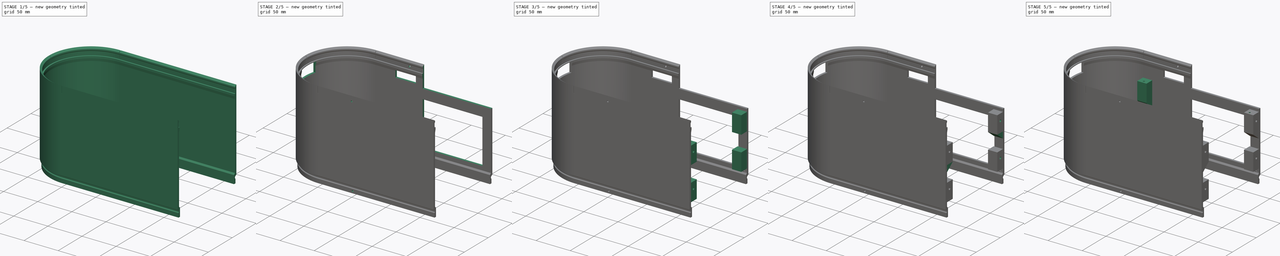
[diagram: build sequence overview — one tinted view per stage of 5, left to right]
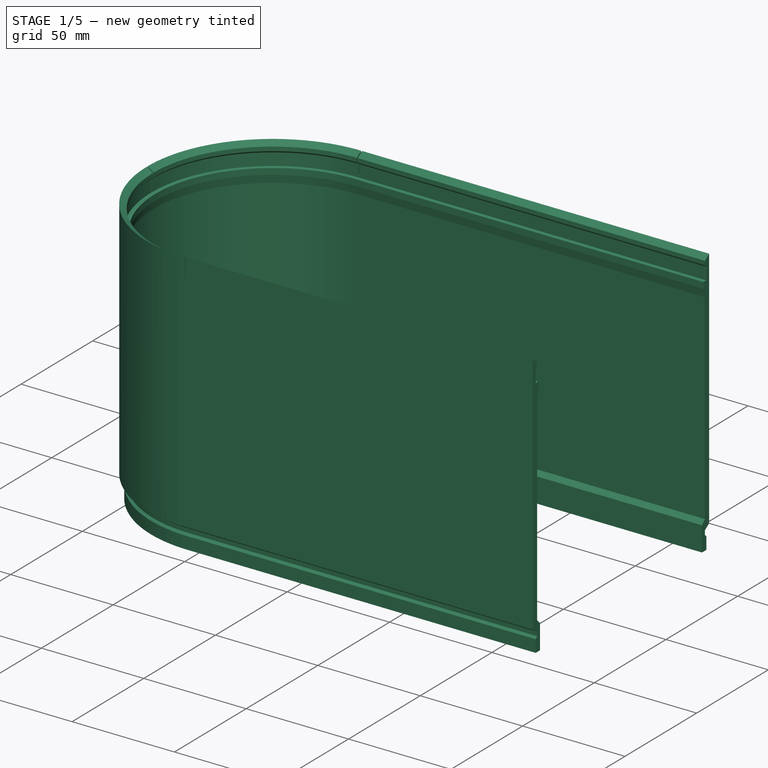
[diagram: stage 1 of 5 — iso view after this stage's code; geometry added in this stage tinted green]
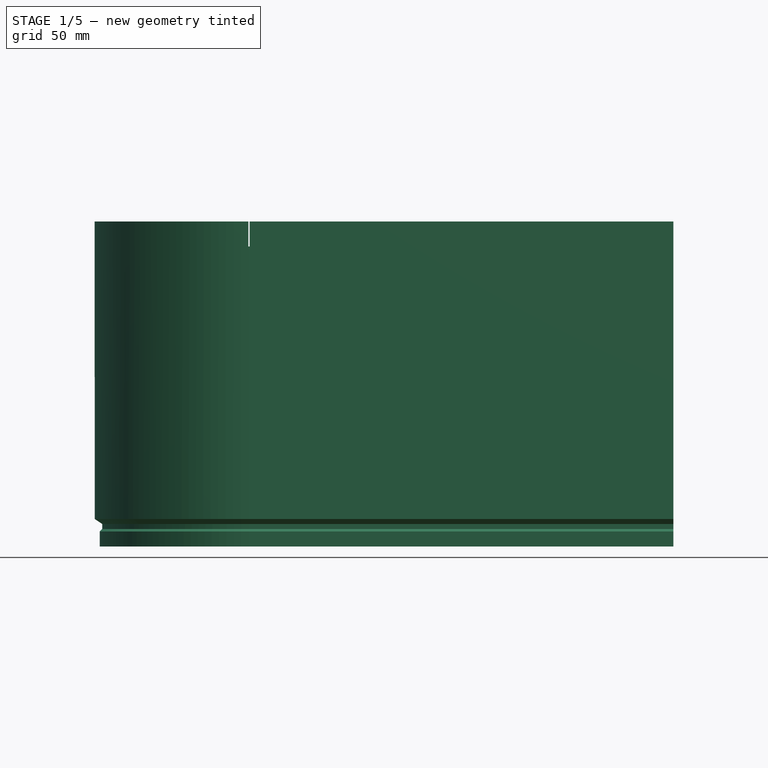
[diagram: stage 1 of 5 — front view after this stage's code; geometry added in this stage tinted green]
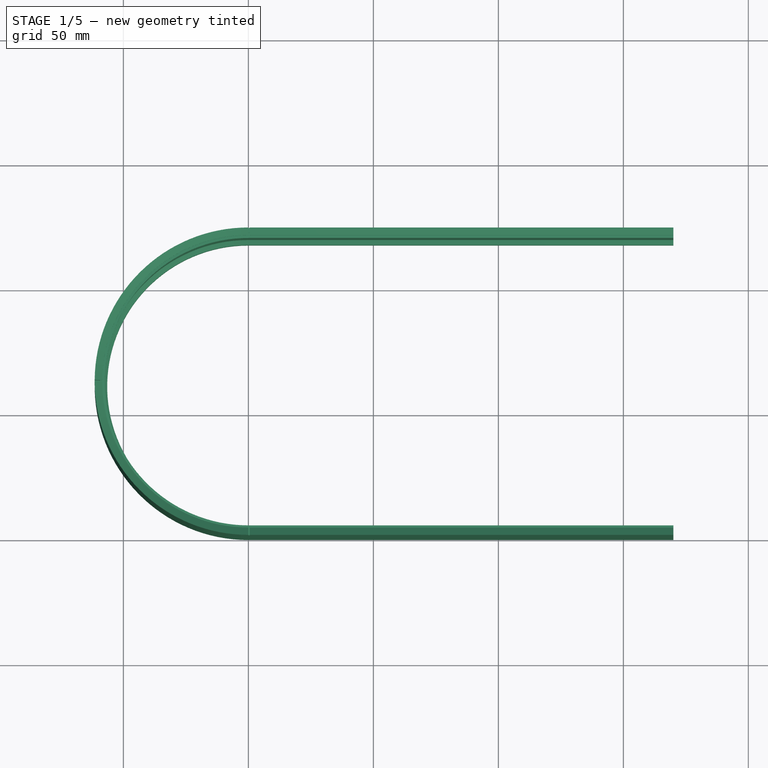
[diagram: stage 1 of 5 — top view after this stage's code; geometry added in this stage tinted green]
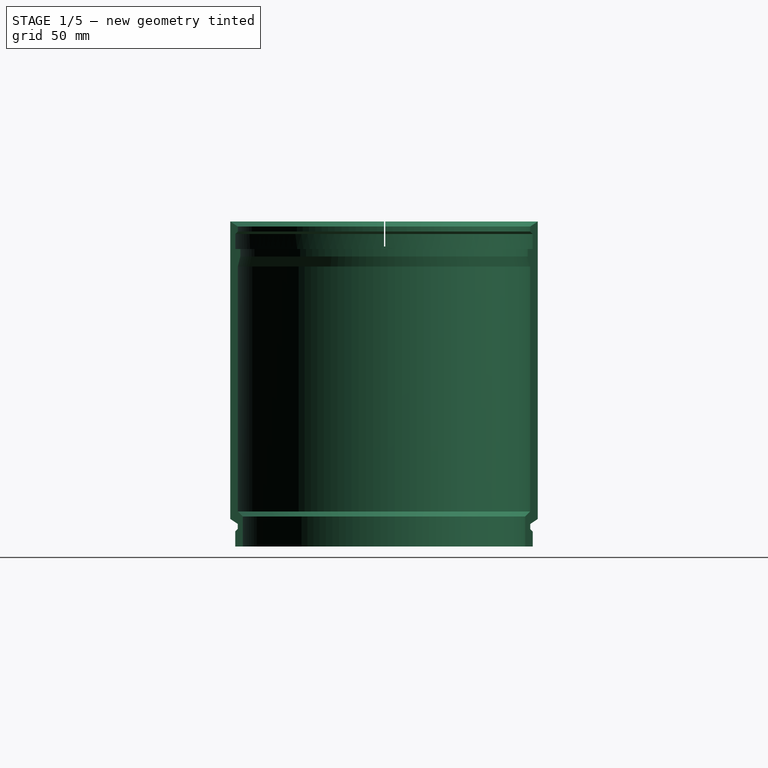
[diagram: stage 1 of 5 — right view after this stage's code; geometry added in this stage tinted green]
FCSTD DOCUMENT  (FreeCAD 1.0R39109 (Git))
Label: MIddle Layer - Pi Side - Wall
License: All rights reserved
LicenseURL: http://en.wikipedia.org/wiki/All_rights_reserved
objects: Sketcher::SketchObject×16, PartDesign::Pocket×12, PartDesign::Plane×6, PartDesign::Mirrored×6, PartDesign::Pad×4, App::Link×1, PartDesign::ShapeBinder×1, PartDesign::Line×1, PartDesign::Revolution×1, PartDesign::Body×1, App::Part×1
note: 104 computed .brp shape members not serialized (recipe doc carries the construction recipe); baked Part::Feature solids carry a one-line shape summary decoded from their .brp
EXTERNAL_REF file=../Master Document.FCStd obj=Spreadsheet

FEATURE [App::Link] Link  label="Monitor Chassis Parameters"
  LinkPlacement = pos=(0,-59,0) rot=(0,0,1;0rad)
  LinkedObject = -> <external ../Master Document.FCStd>#Spreadsheet
  Placement = pos=(0,-59,0) rot=(0,0,1;0rad)
FEATURE [Sketcher::SketchObject] Sketch001  label="Side Wall Sketch"
  ArcFitTolerance = 0
  FullyConstrained = true
  MakeInternals = false
  MapMode = 5
  Placement = pos=(0,0,0) rot=(0.57735,-0.57735,-0.57735;2.0944rad)
  expr: Constraints[15] = 2
  expr: Constraints[16] = <<Monitor Chassis Parameters>>.GSCamWallClickIndent
  expr: Constraints[21] = <<Monitor Chassis Parameters>>.GSCamWallClickLength
  expr: Constraints[36] = 3
  expr: Constraints[38] = 2
  expr: Constraints[39] = <<Monitor Chassis Parameters>>.GSCamWallClickLength
  expr: Constraints[40] = <<Monitor Chassis Parameters>>.GsMonitorWall2OverallHeight
  expr: Constraints[42] = 1
  expr: Constraints[43] = 1
  expr: Constraints[44] = 2
  expr: Constraints[45] = 2
  expr: Constraints[46] = 2
  expr: Constraints[47] = 3
  expr: Constraints[48] = <<Monitor Chassis Parameters>>.GSThinWallThickness
  sketch-geometry (18):
    g0: LineSegment StartX=-3 StartY=126 StartZ=0 EndX=-2 EndY=125 EndZ=0
    g1: LineSegment StartX=-2 StartY=125 StartZ=0 EndX=-2 EndY=119 EndZ=0
    g2: LineSegment StartX=-2 StartY=119 StartZ=0 EndX=-4 EndY=119 EndZ=0
    g3: GeomPoint [constr] X=-3 Y=112 Z=0
    g4: GeomPoint [constr] X=-4 Y=116 Z=0
    g5: LineSegment StartX=-4 StartY=119 StartZ=0 EndX=-4 EndY=116 EndZ=0
    g6: LineSegment StartX=-4 StartY=116 StartZ=0 EndX=-3 EndY=112 EndZ=0
    g7: LineSegment StartX=0 StartY=130 StartZ=0 EndX=-3 EndY=128 EndZ=0
    g8: LineSegment StartX=-3 StartY=126 StartZ=0 EndX=-3 EndY=128 EndZ=0
    g9: LineSegment StartX=-3 StartY=112 StartZ=0 EndX=-3 EndY=14 EndZ=0
    g10: LineSegment StartX=-5 StartY=12 StartZ=0 EndX=-5 EndY=0 EndZ=0
    g11: LineSegment StartX=-2 StartY=0 StartZ=0 EndX=-2 EndY=6 EndZ=0
    g12: LineSegment StartX=-2 StartY=6 StartZ=0 EndX=-3 EndY=7 EndZ=0
    g13: LineSegment StartX=-3 StartY=7 StartZ=0 EndX=-3 EndY=9 EndZ=0
    g14: LineSegment StartX=-3 StartY=9 StartZ=0 EndX=0 EndY=11 EndZ=0
    g15: LineSegment StartX=-5 StartY=12 StartZ=0 EndX=-3 EndY=14 EndZ=0
    g16: LineSegment StartX=-5 StartY=0 StartZ=0 EndX=-2 EndY=0 EndZ=0
    g17: LineSegment StartX=0 StartY=130 StartZ=0 EndX=0 EndY=11 EndZ=0
  constraints (50):
    c: Coincident(g0,g1)
    c: Coincident(g1,g2)
    c: Vertical(g0,g1)
    c: Coincident(g5,g2)
    c: Coincident(g5,g4)
    c: Coincident(g9,g3)
    c: Coincident(g6,g5)
    c: Coincident(g6,g9)
    c: DistanceY(g9,g5) = 4
    c: DistanceX(g5,g9) = 1
    c: Vertical(g5)
    c: Coincident(g8,g0)
    c: Coincident(g8,g7)
    c: DistanceY(g5,g2) = 3
    c: Horizontal(g2,g1)
    c: DistanceX(g2,g1) = 2
    c: DistanceX(g0,g0) = 1
    c: DistanceY(g0,g0) = 1
    c: Vertical(g8)
    c: DistanceY(g7,g7) = 2
    c: DistanceY(g0,g7) = 2
    c: DistanceY(g1,g0) = 6
    c: Vertical(g9)
    c: Coincident(g12,g11)
    c: Coincident(g13,g12)
    c: Vertical(g13)
    c: Coincident(g14,g13)
    c: Coincident(g15,g10)
    c: Coincident(g16,g10)
    c: Coincident(g16,g11)
    c: Horizontal(g16)
    c: Vertical(g11)
    c: Vertical(g10)
    c: Coincident(g17,g7)
    c: PointOnObject(g17,g-2)
    c: Vertical(g17)
    c: DistanceX(g10,g11) = 3
    c: Coincident(g17,g14)
    c: DistanceX(g11,g-1) = 2
    c: DistanceY(g11,g11) = 6
    c: DistanceY(g11,g7) = 130
    c: Horizontal(g11,g-1)
    c: DistanceY(g11,g12) = 1
    c: DistanceX(g12,g11) = 1
    c: DistanceY(g12,g13) = 2
    c: DistanceY(g13,g14) = 2
    c: DistanceY(g10,g15) = 2
    c: DistanceY(g13,g10) = 3
    c: DistanceX(g9,g-1) = 3
    c: Coincident(g9,g15)
FEATURE [PartDesign::Pad] Pad001  label="Side Wall Pad"
  Direction = (-1,1e-16,-1e-16)
  Length = 170
  Length2 = 10
  Placement = pos=(0,0,0) rot=(0.57735,-0.57735,-0.57735;2.0944rad)
  Profile = -> Sketch001
  ReferenceAxis = -> Sketch001 [N_Axis]
  Reversed = true
  Suppressed = false
  Type = 0
  expr: Length = <<Monitor Chassis Parameters>>.GSWallHalfLength
FEATURE [PartDesign::ShapeBinder] CopyYZ_Plane
  Placement = pos=(0,0,0) rot=(0.57735,0.57735,0.57735;2.0944rad)
  TraceSupport = false
FEATURE [PartDesign::Line] DatumLine
  AttacherType = Attacher::AttachEngineLine
  AttachmentOffset = pos=(0,0,61.5) rot=(0,1,0;1.5708rad)
  AttachmentSupport = -> [CopyYZ_Plane]
  Length = 20
  MapMode = 16
  Placement = pos=(0,61.5,0) rot=(0,0,1;4.71239rad)
  ResizeMode = 0
  expr: .AttachmentOffset.Base.z = 0.5 * <<Monitor Chassis Parameters>>.GSWallWidth
FEATURE [PartDesign::Revolution] Revolution  label="Sidel Wall Revolution"
  Angle = 180
  Angle2 = 60
  Axis = (0,0,1)
  Base = (0,61.5,0)
  BaseFeature = -> Pad001
  Placement = pos=(0,0,0) rot=(0.57735,-0.57735,-0.57735;2.0944rad)
  Profile = -> Sketch001
  ReferenceAxis = -> DatumLine
  Reversed = true
  Suppressed = false
  Type = 0
FEATURE [PartDesign::Plane] DatumPlane
  AttachmentSupport = -> [Origin]
  Length = 228.976
  ResizeMode = 0
  Width = 181.976
FEATURE [PartDesign::Plane] DatumPlane001  label="Center Plane"
  AttachmentOffset = pos=(0,0,-61.5) rot=(0,0,1;0rad)
  AttachmentSupport = -> [XZ_Plane001]
  Length = 269.385
  MapMode = 5
  Placement = pos=(0,61.5,-1.37e-14) rot=(1,0,0;1.5708rad)
  ResizeMode = 0
  Width = 192.885
  expr: .AttachmentOffset.Base.z = -0.5 * <<Monitor Chassis Parameters>>.GSWallWidth
FEATURE [PartDesign::Mirrored] Mirrored  label="Side Wall Mirror"
  BaseFeature = -> Revolution
  MirrorPlane = -> DatumPlane001
  Originals = -> [Pad001]
  Placement = pos=(0,0,0) rot=(0.57735,-0.57735,-0.57735;2.0944rad)
  Suppressed = false
  TransformMode = 0
FEATURE [Sketcher::SketchObject] Sketch004
  ArcFitTolerance = 1e-06
  AttachmentSupport = -> [XZ_Plane001]
  FullyConstrained = true
  MakeInternals = false
  MapMode = 5
  Placement = pos=(0,0,0) rot=(1,0,0;1.5708rad)
  expr: Constraints[10] = <<Monitor Chassis Parameters>>.GsMonitorWall2OverallHeight
  expr: Constraints[11] = <<Monitor Chassis Parameters>>.GSMonitorWallTensionReliefCutWidth
  sketch-geometry (4):
    g0: LineSegment StartX=0 StartY=130 StartZ=0 EndX=0 EndY=120 EndZ=0
    g1: LineSegment StartX=0 StartY=120 StartZ=0 EndX=0.5 EndY=120 EndZ=0
    g2: LineSegment StartX=0.5 StartY=120 StartZ=0 EndX=0.5 EndY=130 EndZ=0
    g3: LineSegment StartX=0.5 StartY=130 StartZ=0 EndX=0 EndY=130 EndZ=0
  constraints (12):
    c: Coincident(g0,g1)
    c: Coincident(g1,g2)
    c: Coincident(g2,g3)
    c: Coincident(g3,g0)
    c: Vertical(g0)
    c: Vertical(g2)
    c: Horizontal(g1)
    c: Horizontal(g3)
    c: DistanceY(g0,g0) = 10
    c: Vertical(g0,g-1)
    c: DistanceY(g-1,g0) = 130
    c: DistanceX(g0,g1) = 0.5
FEATURE [PartDesign::Pocket] Pocket  label="Tension Relief Side Pocket"
  BaseFeature = -> Mirrored
  Direction = (0,1,-2e-16)
  Length = 5
  Length2 = 5
  Placement = pos=(0,0,0) rot=(0.57735,-0.57735,-0.57735;2.0944rad)
  Profile = -> Sketch004
  ReferenceAxis = -> Sketch004 [N_Axis]
  Suppressed = false
  Type = 1
FEATURE [Sketcher::SketchObject] Sketch005
  ArcFitTolerance = 1e-06
  AttachmentSupport = -> [YZ_Plane001]
  FullyConstrained = true
  MakeInternals = false
  MapMode = 5
  Placement = pos=(0,0,0) rot=(0.57735,0.57735,0.57735;2.0944rad)
  expr: Constraints[10] = <<Monitor Chassis Parameters>>.GSMonitorWallTensionReliefCutWidth
  expr: Constraints[11] = 0.5 * <<Monitor Chassis Parameters>>.GSWallWidth
  expr: Constraints[8] = <<Monitor Chassis Parameters>>.GsMonitorWall2OverallHeight
  sketch-geometry (4):
    g0: LineSegment StartX=61.5 StartY=130 StartZ=0 EndX=61.5 EndY=120 EndZ=0
    g1: LineSegment StartX=61.5 StartY=120 StartZ=0 EndX=62 EndY=120 EndZ=0
    g2: LineSegment StartX=62 StartY=120 StartZ=0 EndX=62 EndY=130 EndZ=0
    g3: LineSegment StartX=62 StartY=130 StartZ=0 EndX=61.5 EndY=130 EndZ=0
  constraints (12):
    c: Coincident(g0,g1)
    c: Coincident(g1,g2)
    c: Coincident(g2,g3)
    c: Coincident(g3,g0)
    c: Vertical(g0)
    c: Vertical(g2)
    c: Horizontal(g1)
    c: Horizontal(g3)
    c: DistanceY(g-1,g0) = 130
    c: DistanceY(g0,g0) = 10
    c: DistanceX(g0,g1) = 0.5
    c: DistanceX(g-1,g0) = 61.5
FEATURE [PartDesign::Pocket] Pocket001  label="Tension Curve Cuts Pocket"
  BaseFeature = -> Pocket
  Direction = (-1,0,0)
  Length = 5
  Length2 = 5
  Placement = pos=(0,0,0) rot=(0.57735,-0.57735,-0.57735;2.0944rad)
  Profile = -> Sketch005
  ReferenceAxis = -> Sketch005 [N_Axis]
  Suppressed = false
  Type = 1
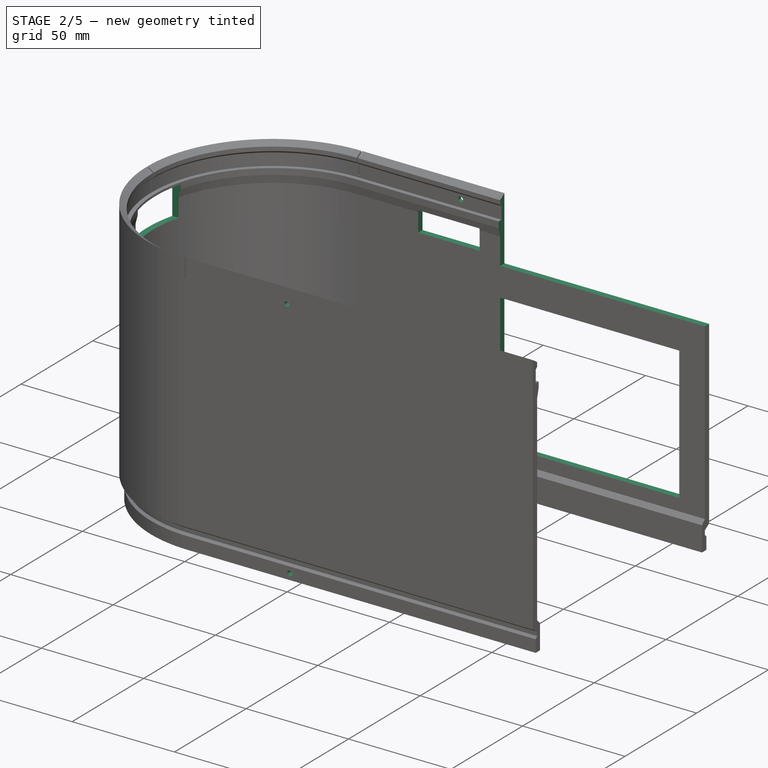
[diagram: stage 2 of 5 — iso view after this stage's code; geometry added in this stage tinted green]
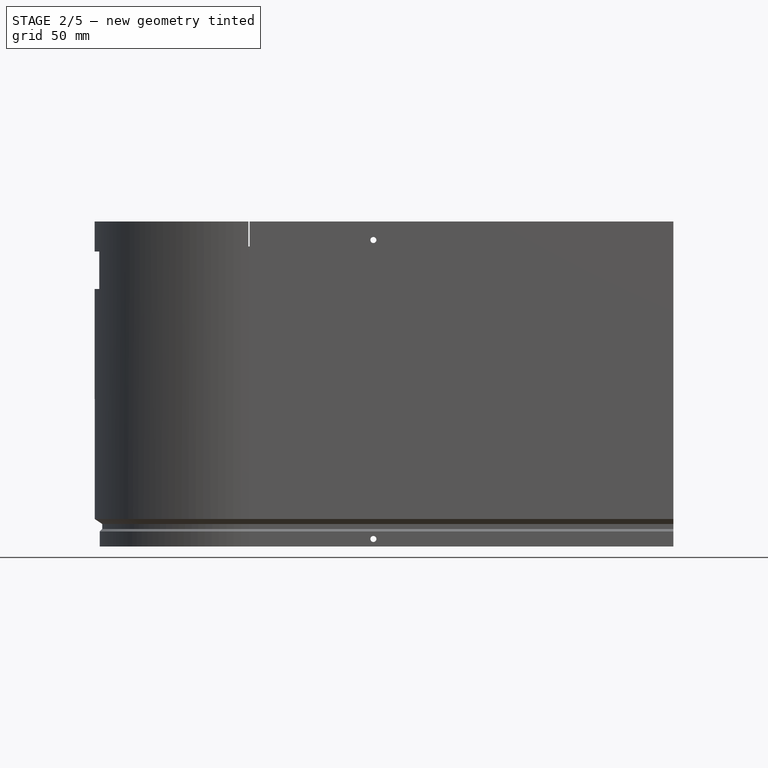
[diagram: stage 2 of 5 — front view after this stage's code; geometry added in this stage tinted green]
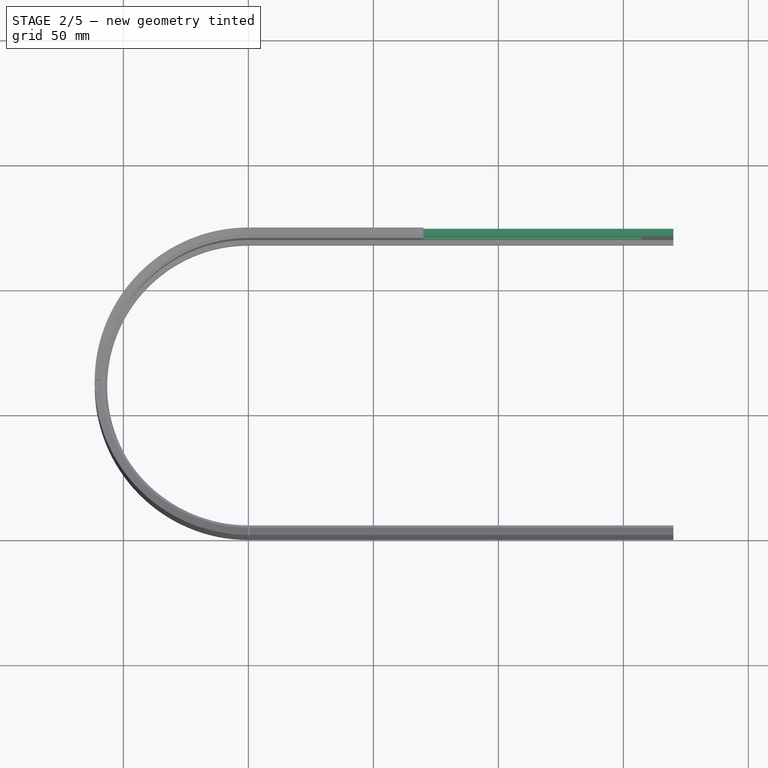
[diagram: stage 2 of 5 — top view after this stage's code; geometry added in this stage tinted green]
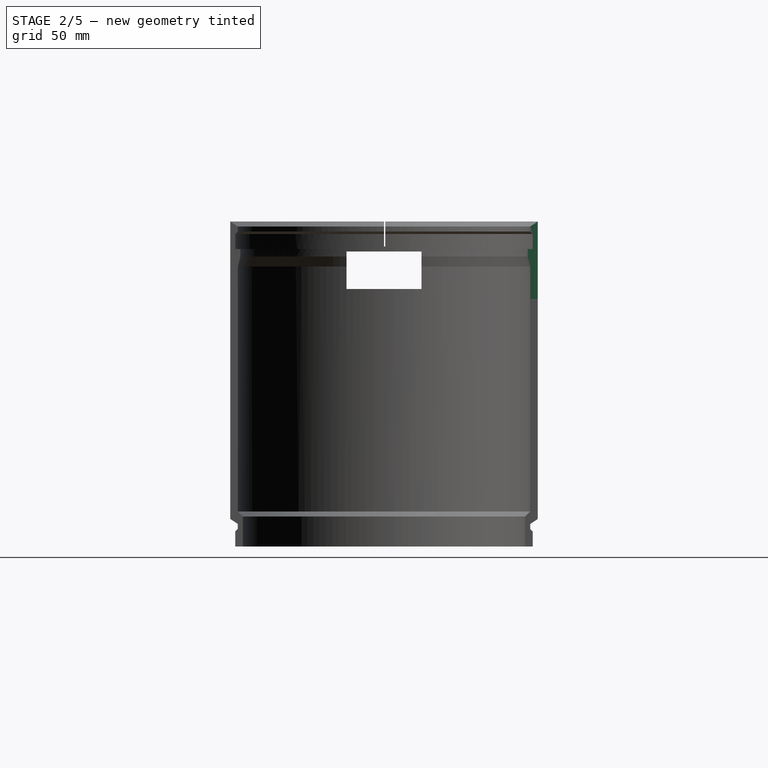
[diagram: stage 2 of 5 — right view after this stage's code; geometry added in this stage tinted green]
FEATURE [Sketcher::SketchObject] Sketch006
  ArcFitTolerance = 1e-06
  AttachmentSupport = -> [YZ_Plane001]
  FullyConstrained = true
  MakeInternals = false
  MapMode = 5
  Placement = pos=(0,0,0) rot=(0.57735,0.57735,0.57735;2.0944rad)
  expr: Constraints[10] = 0.5 * <<Monitor Chassis Parameters>>.GSWallWidth + <<Monitor Chassis Parameters>>.GSMonitorPiSideAccessSlotWidth / 2
  expr: Constraints[11] = <<Monitor Chassis Parameters>>.GSMiddleTopFloorDistanceFromBottom + <<Monitor Chassis Parameters>>.GSMonitorFloorThickness + <<Monitor Chassis Parameters>>.GSPi5MountingRiserHeight
  expr: Constraints[8] = <<Monitor Chassis Parameters>>.GSMonitorPiSideAccessSlotWidth
  expr: Constraints[9] = <<Monitor Chassis Parameters>>.GSMonitorPiSideAccessSlotHeight
  sketch-geometry (4):
    g0: LineSegment StartX=46.5 StartY=118 StartZ=0 EndX=46.5 EndY=103 EndZ=0
    g1: LineSegment StartX=46.5 StartY=103 StartZ=0 EndX=76.5 EndY=103 EndZ=0
    g2: LineSegment StartX=76.5 StartY=103 StartZ=0 EndX=76.5 EndY=118 EndZ=0
    g3: LineSegment StartX=76.5 StartY=118 StartZ=0 EndX=46.5 EndY=118 EndZ=0
  constraints (12):
    c: Coincident(g0,g1)
    c: Coincident(g1,g2)
    c: Coincident(g2,g3)
    c: Coincident(g3,g0)
    c: Vertical(g0)
    c: Vertical(g2)
    c: Horizontal(g1)
    c: Horizontal(g3)
    c: DistanceX(g0,g2) = 30
    c: DistanceY(g0,g0) = 15
    c: DistanceX(g-1,g2) = 76.5
    c: DistanceY(g-1,g0) = 103
FEATURE [PartDesign::Pocket] Pocket002  label="Pi USB Side Access Pocket"
  BaseFeature = -> Pocket001
  Direction = (-1,0,0)
  Length = 5
  Length2 = 5
  Placement = pos=(0,0,0) rot=(0.57735,-0.57735,-0.57735;2.0944rad)
  Profile = -> Sketch006
  ReferenceAxis = -> Sketch006 [N_Axis]
  Suppressed = false
  Type = 1
FEATURE [Sketcher::SketchObject] Sketch007
  ArcFitTolerance = 1e-06
  AttachmentSupport = -> [XZ_Plane001]
  FullyConstrained = true
  MakeInternals = false
  MapMode = 5
  Placement = pos=(0,0,0) rot=(1,0,0;1.5708rad)
  expr: Constraints[0] = <<Monitor Chassis Parameters>>.GSWallHalfLength - <<Monitor Chassis Parameters>>.GsMonitorInterFloorJoinScrewOffsetFromCenter
  expr: Constraints[1] = <<Monitor Chassis Parameters>>.GSM3TappingScrewHoleDiameter
  expr: Constraints[2] = <<Monitor Chassis Parameters>>.GsMonitorWall2OverallHeight - 11 + 1.5 * <<Monitor Chassis Parameters>>.GSM3TappingScrewHoleDiameter
  expr: Constraints[3] = <<Monitor Chassis Parameters>>.GSM3TappingScrewHoleDiameter
  expr: Constraints[5] = 3
  sketch-geometry (2):
    g0: Circle CenterX=50 CenterY=122.6 CenterZ=0 NormalX=0 NormalY=0 NormalZ=1 AngleXU=0 Radius=1.2
    g1: Circle CenterX=50 CenterY=3 CenterZ=0 NormalX=0 NormalY=0 NormalZ=1 AngleXU=0 Radius=1.2
  constraints (6):
    c: DistanceX(g-1,g0) = 50
    c: Diameter(g0) = 2.4
    c: DistanceY(g-1,g0) = 122.6
    c: Diameter(g1) = 2.4
    c: Vertical(g1,g0)
    c: DistanceY(g-1,g1) = 3
FEATURE [PartDesign::Pocket] Pocket003  label="Inter-Layer Connect Screw Holes"
  BaseFeature = -> Pocket002
  Direction = (0,1,-2e-16)
  Length = 5
  Length2 = 5
  Placement = pos=(0,0,0) rot=(0.57735,-0.57735,-0.57735;2.0944rad)
  Profile = -> Sketch007
  ReferenceAxis = -> Sketch007 [N_Axis]
  Suppressed = false
  Type = 1
FEATURE [PartDesign::Plane] DatumPlane002  label="Far Wall DatumPlane002"
  AttachmentOffset = pos=(0,0,-123) rot=(0,0,1;0rad)
  AttachmentSupport = -> [XZ_Plane001]
  Length = 269.385
  MapMode = 5
  Placement = pos=(0,123,-2.73e-14) rot=(1,0,0;1.5708rad)
  ResizeMode = 0
  Width = 192.885
  expr: .AttachmentOffset.Base.z = -<<Monitor Chassis Parameters>>.GSWallWidth
FEATURE [Sketcher::SketchObject] Sketch008
  ArcFitTolerance = 1e-06
  AttachmentSupport = -> [DatumPlane002]
  FullyConstrained = true
  MakeInternals = false
  MapMode = 5
  Placement = pos=(0,123,-2.73e-14) rot=(1,0,0;1.5708rad)
  expr: Constraints[10] = <<Monitor Chassis Parameters>>.GSWallHalfLength - <<Monitor Chassis Parameters>>.GsMonitorPiAccessPortOffsetFromCenter
  expr: Constraints[11] = <<Monitor Chassis Parameters>>.GSMiddleTopFloorDistanceFromBottom + <<Monitor Chassis Parameters>>.GSMonitorFloorThickness + <<Monitor Chassis Parameters>>.GSPi5MountingRiserHeight
  expr: Constraints[8] = <<Monitor Chassis Parameters>>.GsMonitorPiAccessPortWidth
  expr: Constraints[9] = <<Monitor Chassis Parameters>>.GsMonitorPiAccessPortHeight
  sketch-geometry (4):
    g0: LineSegment StartX=60 StartY=113 StartZ=0 EndX=30 EndY=113 EndZ=0
    g1: LineSegment StartX=30 StartY=113 StartZ=0 EndX=30 EndY=103 EndZ=0
    g2: LineSegment StartX=30 StartY=103 StartZ=0 EndX=60 EndY=103 EndZ=0
    g3: LineSegment StartX=60 StartY=103 StartZ=0 EndX=60 EndY=113 EndZ=0
  constraints (12):
    c: Coincident(g0,g1)
    c: Coincident(g1,g2)
    c: Coincident(g2,g3)
    c: Coincident(g3,g0)
    c: Horizontal(g0)
    c: Horizontal(g2)
    c: Vertical(g1)
    c: Vertical(g3)
    c: DistanceX(g0,g0) = 30
    c: DistanceY(g2,g0) = 10
    c: DistanceX(g-1,g0) = 60
    c: DistanceY(g-1,g1) = 103
FEATURE [PartDesign::Pocket] Pocket004  label="Pi Front Access Port Pocket"
  BaseFeature = -> Pocket003
  Direction = (0,1,-2e-16)
  Length = 5
  Length2 = 5
  Placement = pos=(0,0,0) rot=(0.57735,-0.57735,-0.57735;2.0944rad)
  Profile = -> Sketch008
  ReferenceAxis = -> Sketch008 [N_Axis]
  Reversed = true
  Suppressed = false
  Type = 0
FEATURE [Sketcher::SketchObject] Sketch009
  ArcFitTolerance = 1e-06
  AttachmentSupport = -> [DatumPlane002]
  FullyConstrained = true
  MakeInternals = false
  MapMode = 5
  Placement = pos=(0,123,-2.73e-14) rot=(1,0,0;1.5708rad)
  expr: Constraints[10] = <<Monitor Chassis Parameters>>.GSLEDViewPortBottomHeight
  expr: Constraints[11] = <<Monitor Chassis Parameters>>.GSLEDViewPortHeight
  expr: Constraints[21] = <<Monitor Chassis Parameters>>.GSWallHalfLength
  expr: Constraints[22] = <<Monitor Chassis Parameters>>.GsMonitorWall2OverallHeight
  expr: Constraints[23] = <<Monitor Chassis Parameters>>.GSMiddleTopFloorDistanceFromBottom + <<Monitor Chassis Parameters>>.GSCamWallThickness
  expr: Constraints[8] = <<Monitor Chassis Parameters>>.GSWallHalfLength - 5 * <<Monitor Chassis Parameters>>.GSMonitorFloorMountingScrewDiameter
  expr: Constraints[9] = <<Monitor Chassis Parameters>>.GSWallHalfLength - <<Monitor Chassis Parameters>>.GSMonitorViewPortLengthRight
  sketch-geometry (8):
    g0: LineSegment StartX=70 StartY=85 StartZ=0 EndX=70 EndY=20 EndZ=0
    g1: LineSegment StartX=70 StartY=20 StartZ=0 EndX=157.5 EndY=20 EndZ=0
    g2: LineSegment StartX=157.5 StartY=20 StartZ=0 EndX=157.5 EndY=85 EndZ=0
    g3: LineSegment StartX=157.5 StartY=85 StartZ=0 EndX=70 EndY=85 EndZ=0
    g4: LineSegment StartX=170 StartY=99 StartZ=0 EndX=170 EndY=130 EndZ=0
    g5: LineSegment StartX=170 StartY=130 StartZ=0 EndX=70 EndY=130 EndZ=0
    g6: LineSegment StartX=70 StartY=130 StartZ=0 EndX=70 EndY=99 EndZ=0
    g7: LineSegment StartX=70 StartY=99 StartZ=0 EndX=170 EndY=99 EndZ=0
  constraints (24):
    c: Coincident(g0,g1)
    c: Coincident(g1,g2)
    c: Coincident(g2,g3)
    c: Coincident(g3,g0)
    c: Vertical(g0)
    c: Vertical(g2)
    c: Horizontal(g1)
    c: Horizontal(g3)
    c: DistanceX(g-1,g1) = 157.5
    c: DistanceX(g-1,g0) = 70
    c: DistanceY(g-1,g0) = 20
    c: DistanceY(g0,g0) = 65
    c: Coincident(g4,g5)
    c: Coincident(g5,g6)
    c: Coincident(g6,g7)
    c: Coincident(g7,g4)
    c: Vertical(g4)
    c: Vertical(g6)
    c: Horizontal(g5)
    c: Horizontal(g7)
    c: Vertical(g6,g0)
    c: DistanceX(g-1,g4) = 170
    c: DistanceY(g-1,g4) = 130
    c: DistanceY(g-1,g4) = 99
FEATURE [PartDesign::Pocket] Pocket005  label="LED and Camera 2 Viewport Right Pocket"
  BaseFeature = -> Pocket004
  Direction = (0,1,-2e-16)
  Length = 5
  Length2 = 5
  Placement = pos=(0,0,0) rot=(0.57735,-0.57735,-0.57735;2.0944rad)
  Profile = -> Sketch009
  ReferenceAxis = -> Sketch009 [N_Axis]
  Reversed = true
  Suppressed = false
  Type = 0
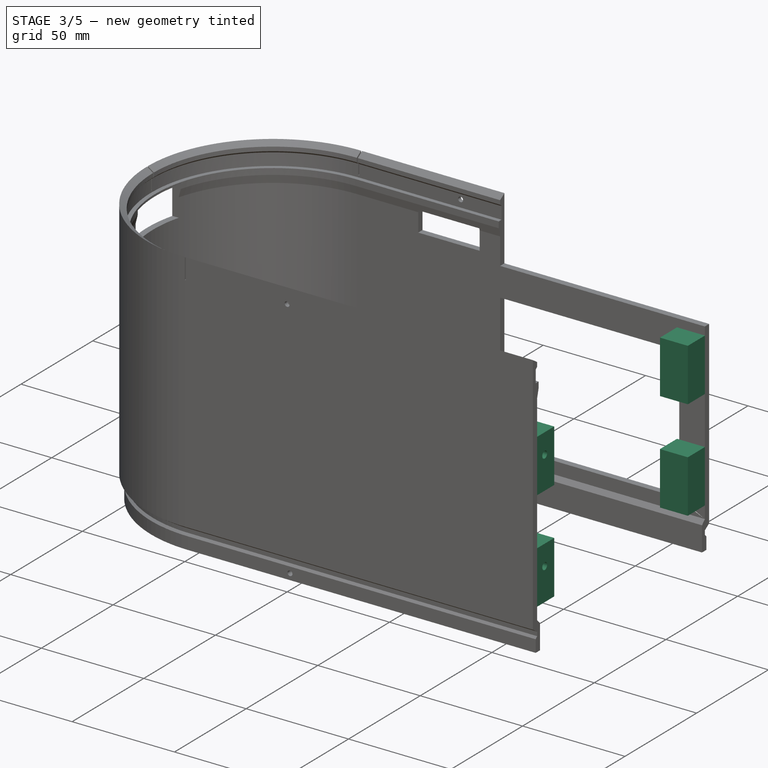
[diagram: stage 3 of 5 — iso view after this stage's code; geometry added in this stage tinted green]
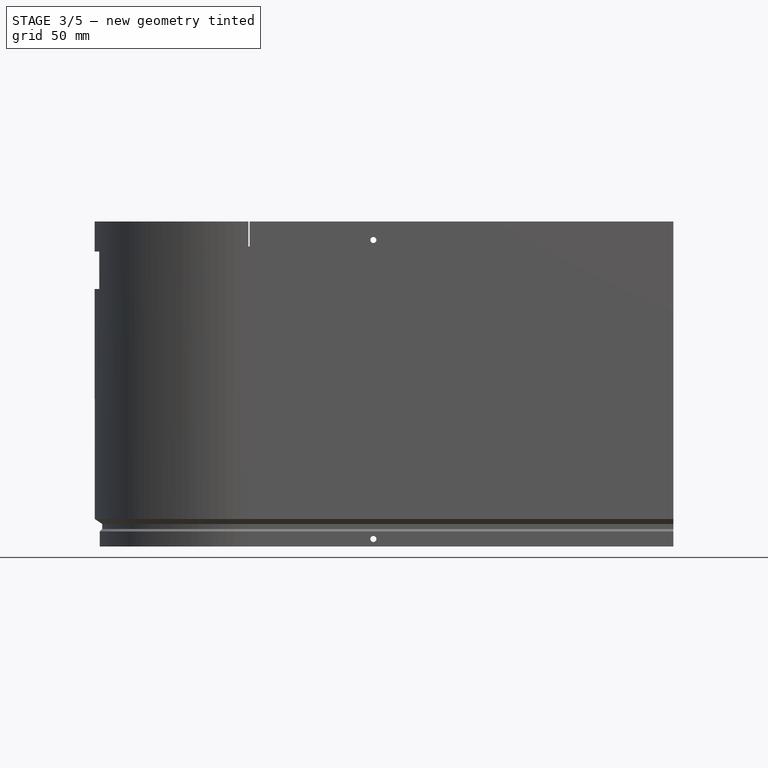
[diagram: stage 3 of 5 — front view after this stage's code; geometry added in this stage tinted green]
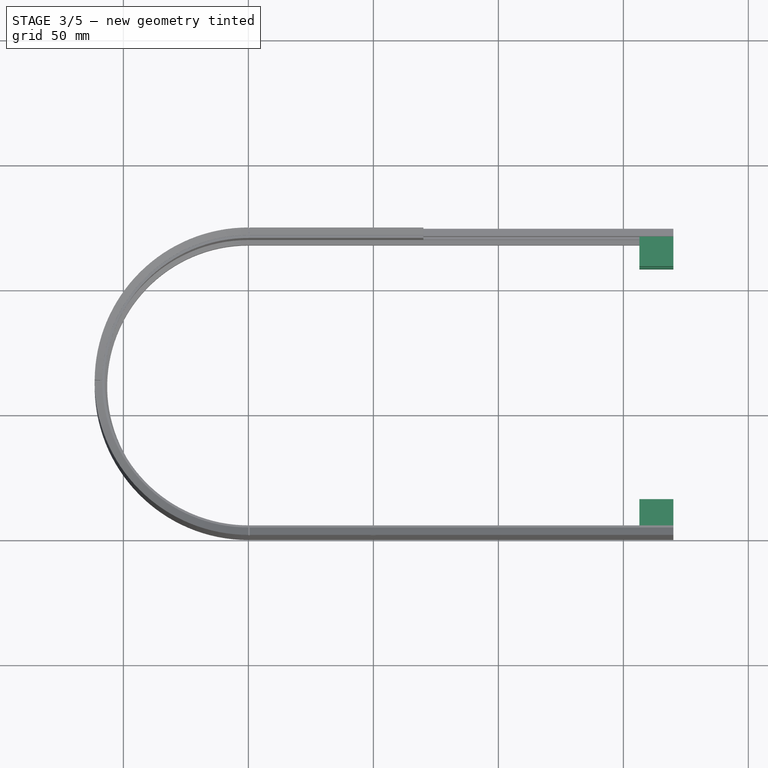
[diagram: stage 3 of 5 — top view after this stage's code; geometry added in this stage tinted green]
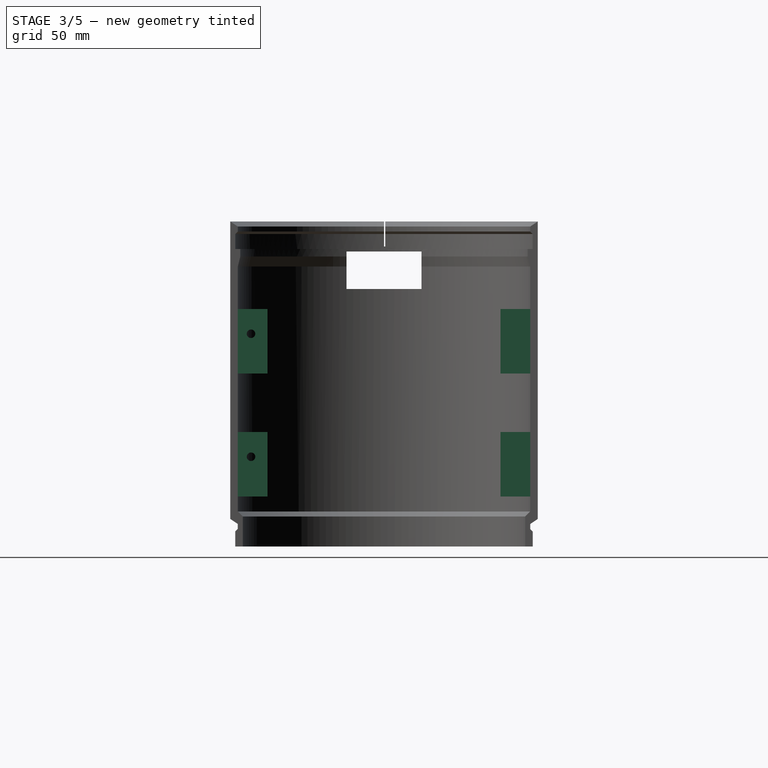
[diagram: stage 3 of 5 — right view after this stage's code; geometry added in this stage tinted green]
FEATURE [PartDesign::Plane] DatumPlane003  label="Half Join DatumPlane003"
  AttachmentOffset = pos=(0,0,170) rot=(0,0,1;0rad)
  AttachmentSupport = -> [YZ_Plane001]
  Length = 178.292
  MapMode = 5
  Placement = pos=(170,0,0) rot=(0.57735,0.57735,0.57735;2.0944rad)
  ResizeMode = 0
  Width = 185.292
  expr: .AttachmentOffset.Base.z = <<Monitor Chassis Parameters>>.GSWallHalfLength
FEATURE [PartDesign::Plane] DatumPlane004  label="First Floor Bottom Datum Plane"
  AttachmentOffset = pos=(0,0,20) rot=(0,0,1;0rad)
  AttachmentSupport = -> [XY_Plane001]
  Length = 268.52
  MapMode = 5
  Placement = pos=(0,0,20) rot=(0,0,1;0rad)
  ResizeMode = 0
  Width = 185.02
  expr: .AttachmentOffset.Base.z = <<Monitor Chassis Parameters>>.GSMiddleBottomFloorPadDistanceFromBottom
FEATURE [Sketcher::SketchObject] Sketch
  ArcFitTolerance = 1e-06
  AttachmentSupport = -> [DatumPlane003]
  FullyConstrained = true
  MakeInternals = false
  MapMode = 5
  Placement = pos=(170,0,0) rot=(0.57735,0.57735,0.57735;2.0944rad)
  expr: Constraints[10] = <<Monitor Chassis Parameters>>.GSThinWallThickness
  expr: Constraints[11] = <<Monitor Chassis Parameters>>.GSMiddleBottomFloorPadDistanceFromBottom
  expr: Constraints[20] = <<Monitor Chassis Parameters>>.GsHalfJoinWallPadWidth
  expr: Constraints[21] = 1.5 * <<Monitor Chassis Parameters>>.GSMonitorFloorMountingScrewDepth + 2 * <<Monitor Chassis Parameters>>.GSCamM4NutHexagonDiameter
  expr: Constraints[23] = <<Monitor Chassis Parameters>>.GsMonitorWall2InterFloorSeparation
  expr: Constraints[8] = <<Monitor Chassis Parameters>>.GsHalfJoinWallPadWidth
  expr: Constraints[9] = 1.5 * <<Monitor Chassis Parameters>>.GSMonitorFloorMountingScrewDepth + 2 * <<Monitor Chassis Parameters>>.GSCamM4NutHexagonDiameter
  sketch-geometry (8):
    g0: LineSegment StartX=3 StartY=45.8 StartZ=0 EndX=3 EndY=20 EndZ=0
    g1: LineSegment StartX=3 StartY=20 StartZ=0 EndX=14.9 EndY=20 EndZ=0
    g2: LineSegment StartX=14.9 StartY=20 StartZ=0 EndX=14.9 EndY=45.8 EndZ=0
    g3: LineSegment StartX=14.9 StartY=45.8 StartZ=0 EndX=3 EndY=45.8 EndZ=0
    g4: LineSegment StartX=14.9 StartY=69.2 StartZ=0 EndX=14.9 EndY=95 EndZ=0
    g5: LineSegment StartX=14.9 StartY=95 StartZ=0 EndX=3 EndY=95 EndZ=0
    g6: LineSegment StartX=3 StartY=95 StartZ=0 EndX=3 EndY=69.2 EndZ=0
    g7: LineSegment StartX=3 StartY=69.2 StartZ=0 EndX=14.9 EndY=69.2 EndZ=0
  constraints (24):
    c: Coincident(g0,g1)
    c: Coincident(g1,g2)
    c: Coincident(g2,g3)
    c: Coincident(g3,g0)
    c: Vertical(g0)
    c: Vertical(g2)
    c: Horizontal(g1)
    c: Horizontal(g3)
    c: DistanceX(g0,g2) = 11.9
    c: DistanceY(g0,g0) = 25.8
    c: DistanceX(g-1,g0) = 3
    c: DistanceY(g-1,g0) = 20
    c: Coincident(g4,g5)
    c: Coincident(g5,g6)
    c: Coincident(g6,g7)
    c: Coincident(g7,g4)
    c: Vertical(g4)
    c: Vertical(g6)
    c: Horizontal(g5)
    c: Horizontal(g7)
    c: DistanceX(g5,g4) = 11.9
    c: DistanceY(g4,g4) = 25.8
    c: Vertical(g0,g6)
    c: DistanceY(g1,g4) = 75
FEATURE [PartDesign::Pad] Pad  label="Upper and Lower Floor Mount Support"
  BaseFeature = -> Pocket005
  Direction = (1,0,0)
  Length = 13.6
  Length2 = 10
  Placement = pos=(0,0,0) rot=(0.57735,-0.57735,-0.57735;2.0944rad)
  Profile = -> Sketch
  ReferenceAxis = -> Sketch [N_Axis]
  Reversed = true
  Suppressed = false
  Type = 0
  expr: Length = 4 * <<Monitor Chassis Parameters>>.GSMonitorWallHalfConnectionBoltDiameter
FEATURE [PartDesign::Plane] DatumPlane005
  AttachmentOffset = pos=(0,0,20) rot=(0,0,1;0rad)
  AttachmentSupport = -> [XY_Plane001]
  Length = 268.52
  MapMode = 2
  Placement = pos=(0,0,20) rot=(0,0,1;0rad)
  ResizeMode = 0
  Width = 185.02
  expr: .AttachmentOffset.Base.z = <<Monitor Chassis Parameters>>.GSMiddleBottomFloorPadDistanceFromBottom
FEATURE [Sketcher::SketchObject] Sketch010
  ArcFitTolerance = 1e-06
  AttachmentSupport = -> [DatumPlane005]
  ExternalGeometry = -> [Pad]
  FullyConstrained = true
  MakeInternals = false
  MapMode = 5
  Placement = pos=(0,0,20) rot=(0,0,1;0rad)
  expr: Constraints[0] = <<Monitor Chassis Parameters>>.GSMonitorFloorMountingScrewDiameter
  expr: Constraints[1] = <<Monitor Chassis Parameters>>.GSMonitorFloorMountHoleEdgeOffset
  expr: Constraints[2] = <<Monitor Chassis Parameters>>.GSMonitorFloorMountHoleSideOffset
  sketch-geometry (1):
    g0: Circle CenterX=162 CenterY=11 CenterZ=0 NormalX=0 NormalY=0 NormalZ=1 AngleXU=0 Radius=1.25
  constraints (3):
    c: Diameter(g0) = 2.5
    c: DistanceX(g0,g-3) = 8
    c: DistanceY(g-3,g0) = 8
FEATURE [PartDesign::Pocket] Pocket006  label="Lower Floor Mounting Hole Pocket"
  BaseFeature = -> Pad
  Direction = (0,0,-1)
  Length = 6
  Length2 = 5
  Placement = pos=(0,0,0) rot=(0.57735,-0.57735,-0.57735;2.0944rad)
  Profile = -> Sketch010
  ReferenceAxis = -> Sketch010 [N_Axis]
  Reversed = true
  Suppressed = false
  Type = 0
  expr: Length = <<Monitor Chassis Parameters>>.GSMonitorFloorMountingScrewDepth
FEATURE [Sketcher::SketchObject] Sketch011
  ArcFitTolerance = 1e-06
  AttachmentSupport = -> [Pocket006]
  ExternalGeometry = -> [Pocket006,Sketch]
  FullyConstrained = true
  MakeInternals = false
  MapMode = 5
  Placement = pos=(170,0,0) rot=(0.57735,-0.57735,0.57735;4.18879rad)
  expr: Constraints[0] = <<Monitor Chassis Parameters>>.GSM3BoltHoleDiameter
  expr: Constraints[1] = 1.5 * <<Monitor Chassis Parameters>>.GSCamM3NutHexagonDiameter
  expr: Constraints[2] = <<Monitor Chassis Parameters>>.GSCamM3NutHexagonDiameter
  expr: Constraints[3] = <<Monitor Chassis Parameters>>.GSM3BoltHoleDiameter
  expr: Constraints[5] = 1.5 * <<Monitor Chassis Parameters>>.GSCamM3NutHexagonDiameter
  sketch-geometry (2):
    g0: Circle CenterX=-8.3 CenterY=-35.9 CenterZ=0 NormalX=0 NormalY=0 NormalZ=1 AngleXU=0 Radius=1.7
    g1: Circle CenterX=-8.3 CenterY=-85.1 CenterZ=0 NormalX=0 NormalY=0 NormalZ=1 AngleXU=0 Radius=1.7
  constraints (6):
    c: Diameter(g0) = 3.4
    c: DistanceY(g-3,g0) = 9.9
    c: DistanceX(g-3,g0) = 6.6
    c: Diameter(g1) = 3.4
    c: Vertical(g0,g1)
    c: DistanceY(g-4,g1) = 9.9
FEATURE [PartDesign::Pocket] Pocket007  label="Half Join Bolt Pocket"
  BaseFeature = -> Pocket006
  Direction = (-1,0,0)
  Length = 15
  Length2 = 5
  Placement = pos=(0,0,0) rot=(0.57735,-0.57735,-0.57735;2.0944rad)
  Profile = -> Sketch011
  ReferenceAxis = -> Sketch011 [N_Axis]
  Suppressed = false
  Type = 0
FEATURE [PartDesign::Mirrored] Mirrored001  label="Upper and Lower Floor Mount Mirrored"
  BaseFeature = -> Pocket007
  MirrorPlane = -> DatumPlane001
  Originals = -> [Pad]
  Placement = pos=(0,0,0) rot=(0.57735,-0.57735,-0.57735;2.0944rad)
  Suppressed = false
  TransformMode = 0
FEATURE [Sketcher::SketchObject] Sketch012
  ArcFitTolerance = 1e-06
  AttachmentSupport = -> [Mirrored001]
  ExternalGeometry = -> [Mirrored001]
  FullyConstrained = true
  MakeInternals = false
  MapMode = 5
  Placement = pos=(156.4,0,0) rot=(0.57735,-0.57735,-0.57735;2.0944rad)
  expr: Constraints[17] = <<Monitor Chassis Parameters>>.GSCamM3NutHexagonDiameter
  expr: Constraints[39] = <<Monitor Chassis Parameters>>.GSCamM3NutHexagonDiameter
  sketch-geometry (14):
    g0: LineSegment StartX=-5.44212 StartY=37.55 StartZ=0 EndX=-8.3 EndY=39.2 EndZ=0
    g1: LineSegment StartX=-8.3 StartY=39.2 StartZ=0 EndX=-11.1579 EndY=37.55 EndZ=0
    g2: LineSegment StartX=-11.1579 StartY=37.55 StartZ=0 EndX=-11.1579 EndY=34.25 EndZ=0
    g3: LineSegment StartX=-11.1579 StartY=34.25 StartZ=0 EndX=-8.3 EndY=32.6 EndZ=0
    g4: LineSegment StartX=-8.3 StartY=32.6 StartZ=0 EndX=-5.44212 EndY=34.25 EndZ=0
    g5: LineSegment StartX=-5.44212 StartY=34.25 StartZ=0 EndX=-5.44212 EndY=37.55 EndZ=0
    g6: Circle [constr] CenterX=-8.3 CenterY=35.9 CenterZ=0 NormalX=0 NormalY=0 NormalZ=1 AngleXU=0 Radius=3.3
    g7: LineSegment StartX=-11.1579 StartY=86.75 StartZ=0 EndX=-11.1579 EndY=83.45 EndZ=0
    g8: LineSegment StartX=-11.1579 StartY=83.45 StartZ=0 EndX=-8.3 EndY=81.8 EndZ=0
    g9: LineSegment StartX=-8.3 StartY=81.8 StartZ=0 EndX=-5.44212 EndY=83.45 EndZ=0
    g10: LineSegment StartX=-5.44212 StartY=83.45 StartZ=0 EndX=-5.44212 EndY=86.75 EndZ=0
    g11: LineSegment StartX=-5.44212 StartY=86.75 StartZ=0 EndX=-8.3 EndY=88.4 EndZ=0
    g12: LineSegment StartX=-8.3 StartY=88.4 StartZ=0 EndX=-11.1579 EndY=86.75 EndZ=0
    g13: Circle [constr] CenterX=-8.3 CenterY=85.1 CenterZ=0 NormalX=0 NormalY=0 NormalZ=1 AngleXU=0 Radius=3.3
  constraints (32):
    c: Coincident(g0,g1)
    c: Coincident(g1,g2)
    c: Coincident(g2,g3)
    c: Coincident(g3,g4)
    c: Coincident(g4,g5)
    c: Coincident(g5,g0)
    c: Equal(g0, g1-g5) x5
    c: PointOnObject(g0,g6)
    c: PointOnObject(g1,g6)
    c: PointOnObject(g2,g6)
    c: PointOnObject(g3,g6)
    c: PointOnObject(g4,g6)
    c: PointOnObject(g5,g6)
    c: Diameter(g6) = 6.6
    c: Horizontal(g1,g0)
    c: Coincident(g-3,g6)
    c: Coincident(g7,g8)
    c: Coincident(g8,g9)
    c: Coincident(g9,g10)
    c: Coincident(g10,g11)
    c: Coincident(g11,g12)
    c: Coincident(g12,g7)
    c: Equal(g7, g8-g12) x5
    c: PointOnObject(g7,g13)
    c: PointOnObject(g8,g13)
    c: PointOnObject(g9,g13)
    c: PointOnObject(g10,g13)
    c: PointOnObject(g11,g13)
    c: PointOnObject(g12,g13)
    c: Coincident(g-4,g13)
    c: Horizontal(g10,g7)
    c: Diameter(g13) = 6.6
FEATURE [PartDesign::Pocket] Pocket008  label="Upper and Lower Floor Nut Indent Pocket"
  BaseFeature = -> Mirrored001
  Direction = (1,-1.3e-15,0)
  Length = 9.6
  Length2 = 5
  Placement = pos=(0,0,0) rot=(0.57735,-0.57735,-0.57735;2.0944rad)
  Profile = -> Sketch012
  ReferenceAxis = -> Sketch012 [N_Axis]
  Suppressed = false
  Type = 0
  expr: Length = 4 * <<Monitor Chassis Parameters>>.GSMonitorWallHalfConnectionBoltDiameter - 4
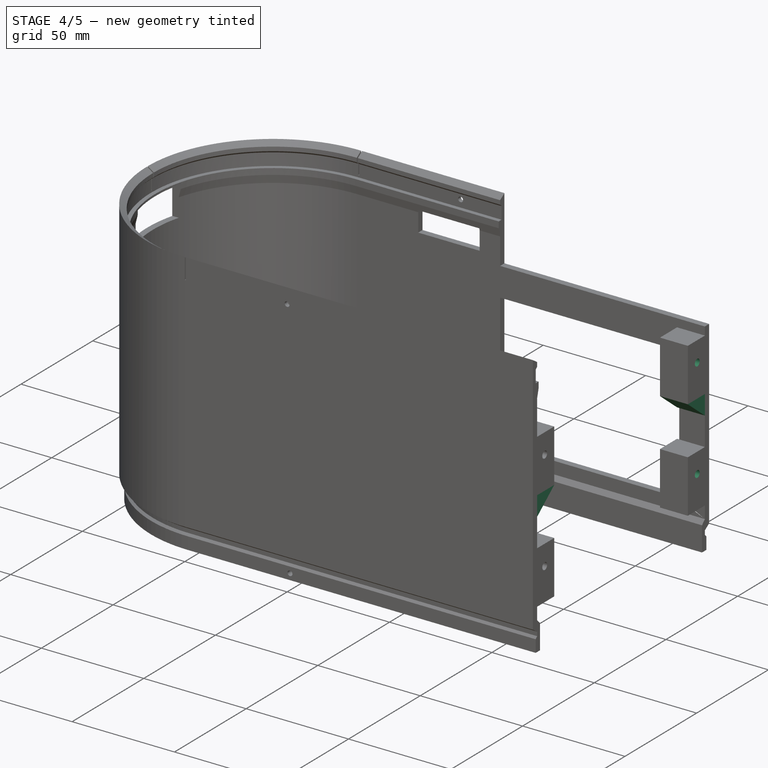
[diagram: stage 4 of 5 — iso view after this stage's code; geometry added in this stage tinted green]
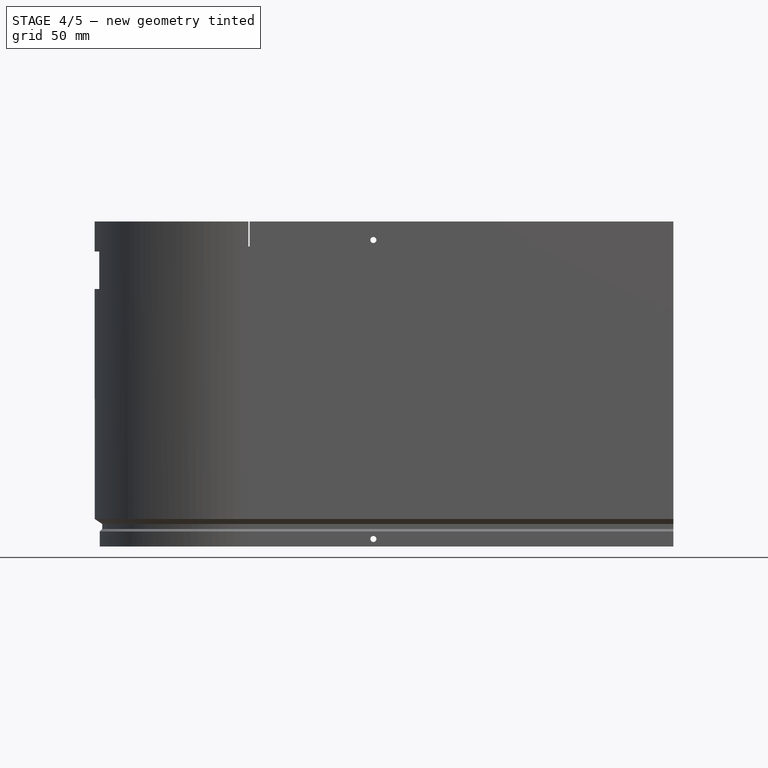
[diagram: stage 4 of 5 — front view after this stage's code; geometry added in this stage tinted green]
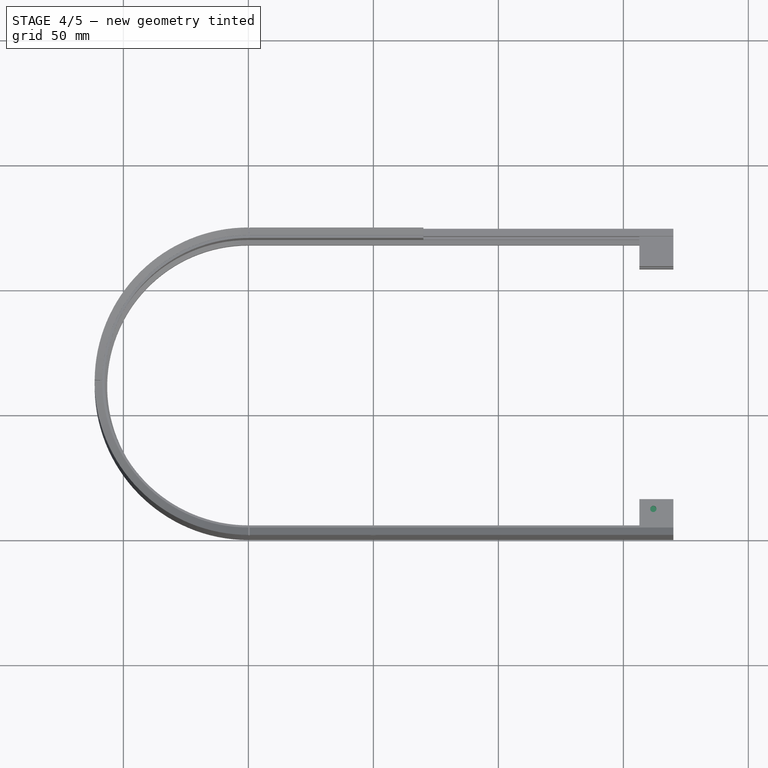
[diagram: stage 4 of 5 — top view after this stage's code; geometry added in this stage tinted green]
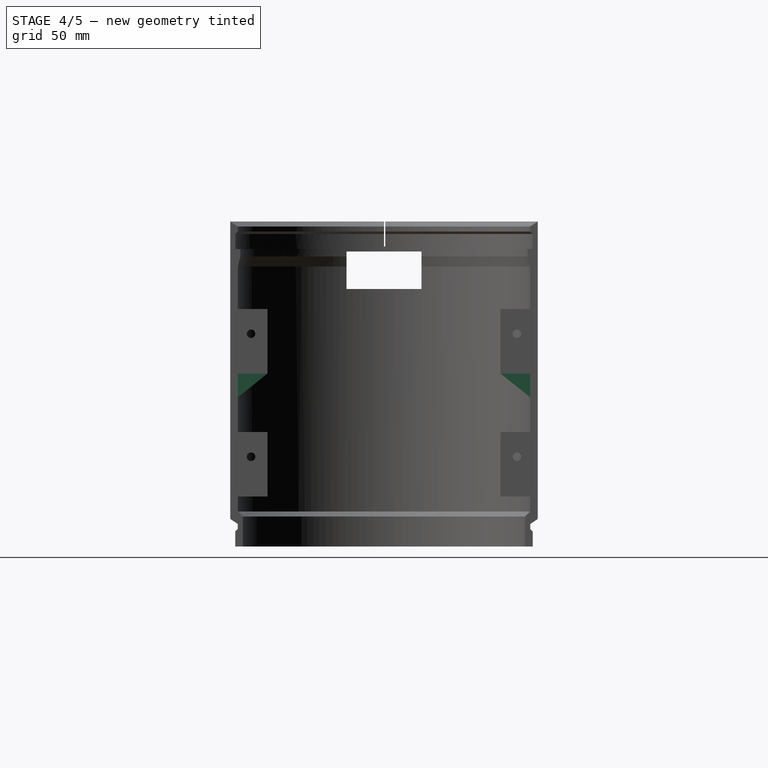
[diagram: stage 4 of 5 — right view after this stage's code; geometry added in this stage tinted green]
FEATURE [PartDesign::Mirrored] Mirrored002  label="Half Join Holes Mirror"
  BaseFeature = -> Pocket008
  MirrorPlane = -> DatumPlane001
  Originals = -> [Pocket007,Pocket006,Pocket008]
  Placement = pos=(0,0,0) rot=(0.57735,-0.57735,-0.57735;2.0944rad)
  Suppressed = false
  TransformMode = 0
FEATURE [Sketcher::SketchObject] Sketch013
  ArcFitTolerance = 1e-06
  AttachmentSupport = -> [Mirrored002]
  ExternalGeometry = -> [Mirrored002]
  FullyConstrained = true
  MakeInternals = false
  MapMode = 5
  Placement = pos=(5.7e-15,0,95) rot=(0,0,1;1.5708rad)
  expr: Constraints[0] = <<Monitor Chassis Parameters>>.GSMonitorFloorMountingScrewDiameter
  expr: Constraints[1] = <<Monitor Chassis Parameters>>.GSMonitorFloorMountHoleSideOffset
  expr: Constraints[2] = <<Monitor Chassis Parameters>>.GSMonitorFloorMountHoleEdgeOffset
  sketch-geometry (1):
    g0: Circle CenterX=11 CenterY=-162 CenterZ=0 NormalX=0 NormalY=0 NormalZ=1 AngleXU=0 Radius=1.25
  constraints (3):
    c: Diameter(g0) = 2.5
    c: DistanceX(g-3,g0) = 8
    c: DistanceY(g-3,g0) = 8
FEATURE [PartDesign::Pocket] Pocket009  label="Upper Floor Mounting Hole Pocket"
  BaseFeature = -> Mirrored002
  Direction = (0,0,-1)
  Length = 6
  Length2 = 5
  Placement = pos=(0,0,0) rot=(0.57735,-0.57735,-0.57735;2.0944rad)
  Profile = -> Sketch013
  ReferenceAxis = -> Sketch013 [N_Axis]
  Suppressed = false
  Type = 0
  expr: Length = <<Monitor Chassis Parameters>>.GSMonitorFloorMountingScrewDepth
FEATURE [Sketcher::SketchObject] Sketch014
  ArcFitTolerance = 1e-06
  AttachmentSupport = -> [DatumPlane003]
  ExternalGeometry = -> [Pocket009]
  FullyConstrained = true
  MakeInternals = false
  MapMode = 5
  Placement = pos=(170,0,0) rot=(0.57735,0.57735,0.57735;2.0944rad)
  expr: Constraints[4] = 0.8 * <<Monitor Chassis Parameters>>.GsHalfJoinWallPadWidth
  expr: Constraints[6] = <<Monitor Chassis Parameters>>.GsHalfJoinWallPadWidth
  sketch-geometry (3):
    g0: LineSegment StartX=3 StartY=59.68 StartZ=0 EndX=3 EndY=69.2 EndZ=0
    g1: LineSegment StartX=3 StartY=69.2 StartZ=0 EndX=14.9 EndY=69.2 EndZ=0
    g2: LineSegment StartX=14.9 StartY=69.2 StartZ=0 EndX=3 EndY=59.68 EndZ=0
  constraints (8):
    c: Vertical(g0)
    c: Horizontal(g1)
    c: Coincident(g2,g1)
    c: Coincident(g2,g0)
    c: DistanceY(g0,g0) = 9.52
    c: Coincident(g1,g0)
    c: DistanceX(g0,g1) = 11.9
    c: Coincident(g1,g-3)
FEATURE [PartDesign::Pad] Pad002  label="Upper Floor Print Support"
  BaseFeature = -> Pocket009
  Direction = (1,0,0)
  Length = 13.6
  Length2 = 10
  Placement = pos=(0,0,0) rot=(0.57735,-0.57735,-0.57735;2.0944rad)
  Profile = -> Sketch014
  ReferenceAxis = -> Sketch014 [N_Axis]
  Reversed = true
  Suppressed = false
  Type = 0
  expr: Length = 4 * <<Monitor Chassis Parameters>>.GSMonitorWallHalfConnectionBoltDiameter
FEATURE [PartDesign::Mirrored] Mirrored003  label="Upper Floor Print Support Mirror"
  BaseFeature = -> Pad002
  MirrorPlane = -> DatumPlane001
  Originals = -> [Pad002]
  Placement = pos=(0,0,0) rot=(0.57735,-0.57735,-0.57735;2.0944rad)
  Suppressed = false
  TransformMode = 0
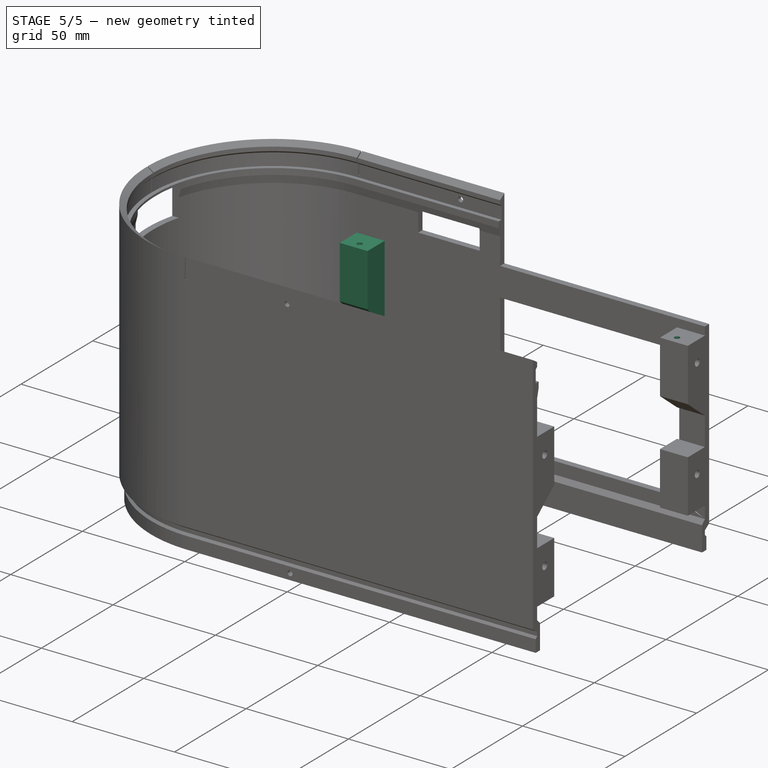
[diagram: stage 5 of 5 — iso view after this stage's code; geometry added in this stage tinted green]
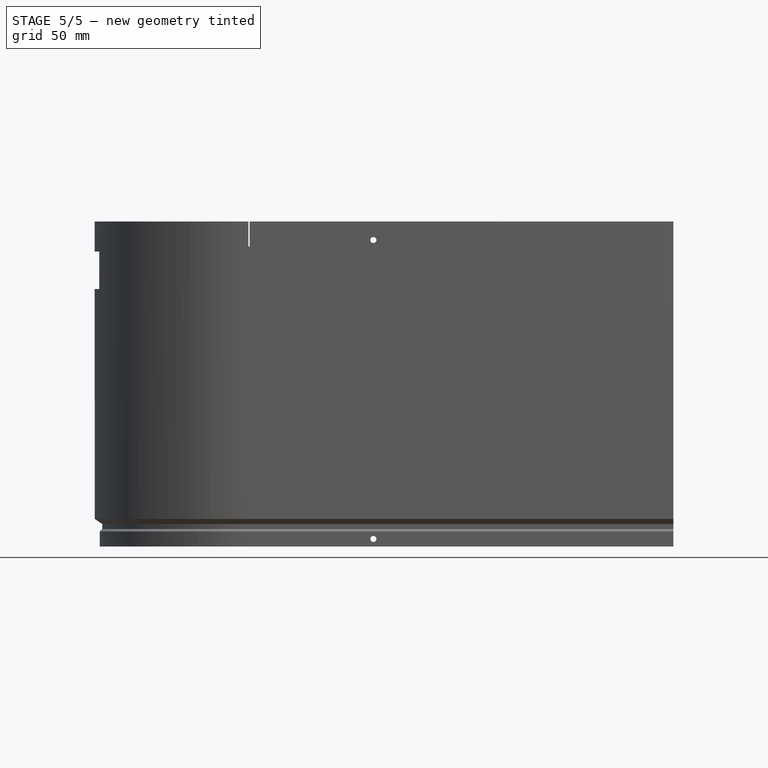
[diagram: stage 5 of 5 — front view after this stage's code; geometry added in this stage tinted green]
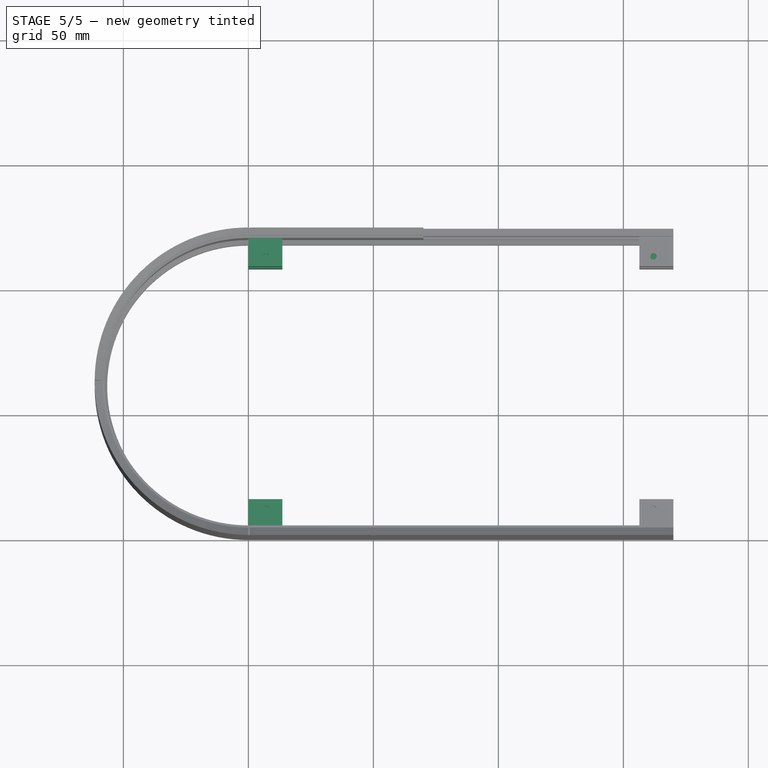
[diagram: stage 5 of 5 — top view after this stage's code; geometry added in this stage tinted green]
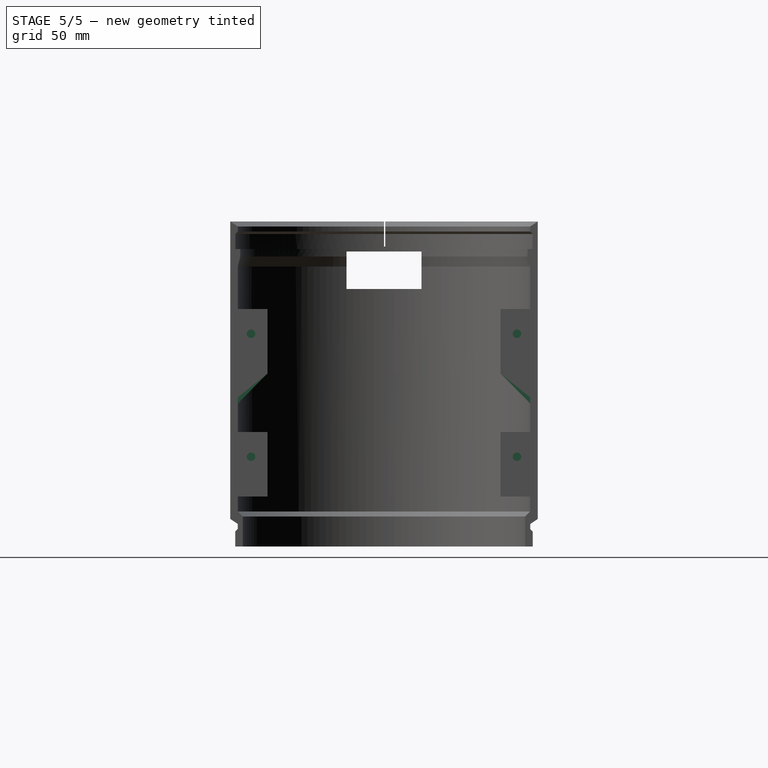
[diagram: stage 5 of 5 — right view after this stage's code; geometry added in this stage tinted green]
FEATURE [Sketcher::SketchObject] Sketch015  label="End Floor Mount Pads Sketch"
  ArcFitTolerance = 1e-06
  AttachmentSupport = -> [YZ_Plane]
  FullyConstrained = true
  MakeInternals = false
  MapMode = 5
  Placement = pos=(0,0,0) rot=(0.57735,0.57735,0.57735;2.0944rad)
  expr: Constraints[23] = 12
  sketch-geometry (8):
    g0: LineSegment StartX=3 StartY=45.8 StartZ=0 EndX=3 EndY=20 EndZ=0
    g1: LineSegment StartX=3 StartY=20 StartZ=0 EndX=14.9 EndY=20 EndZ=0
    g2: LineSegment StartX=14.9 StartY=20 StartZ=0 EndX=14.9 EndY=45.8 EndZ=0
    g3: LineSegment StartX=14.9 StartY=45.8 StartZ=0 EndX=3 EndY=45.8 EndZ=0
    g4: LineSegment StartX=14.9 StartY=69.2 StartZ=0 EndX=14.9 EndY=95 EndZ=0
    g5: LineSegment StartX=14.9 StartY=95 StartZ=0 EndX=3 EndY=95 EndZ=0
    g6: LineSegment StartX=3 StartY=95 StartZ=0 EndX=3 EndY=57.2 EndZ=0
    g7: LineSegment StartX=3 StartY=57.2 StartZ=0 EndX=14.9 EndY=69.2 EndZ=0
  constraints (24):
    c: Coincident(g0,g1)
    c: Coincident(g1,g2)
    c: Coincident(g2,g3)
    c: Coincident(g3,g0)
    c: Vertical(g0)
    c: Vertical(g2)
    c: Horizontal(g1)
    c: Horizontal(g3)
    c: DistanceX(g0,g2) = 11.9
    c: DistanceY(g0,g0) = 25.8
    c: DistanceX(g-1,g0) = 3
    c: DistanceY(g-1,g0) = 20
    c: Coincident(g4,g5)
    c: Coincident(g5,g6)
    c: Coincident(g6,g7)
    c: Coincident(g7,g4)
    c: Vertical(g4)
    c: Vertical(g6)
    c: Horizontal(g5)
    c: DistanceX(g5,g4) = 11.9
    c: DistanceY(g4,g4) = 25.8
    c: Vertical(g0,g6)
    c: DistanceY(g1,g4) = 75
    c: DistanceY(g6,g4) = 12
FEATURE [PartDesign::Pad] Pad003  label="End Floor Mount Pads"
  BaseFeature = -> Mirrored003
  Direction = (1,0,0)
  Length = 13.6
  Length2 = 10
  Placement = pos=(0,0,0) rot=(0.57735,-0.57735,-0.57735;2.0944rad)
  Profile = -> Sketch015
  ReferenceAxis = -> Sketch015 [N_Axis]
  Suppressed = false
  Type = 0
  expr: Length = 4 * <<Monitor Chassis Parameters>>.GSMonitorWallHalfConnectionBoltDiameter
FEATURE [PartDesign::Mirrored] Mirrored004  label="End Floor Mount Mirror"
  BaseFeature = -> Pad003
  MirrorPlane = -> DatumPlane001
  Originals = -> [Pad003]
  Placement = pos=(0,0,0) rot=(0.57735,-0.57735,-0.57735;2.0944rad)
  Suppressed = false
  TransformMode = 0
FEATURE [Sketcher::SketchObject] Sketch016
  ArcFitTolerance = 1e-06
  AttachmentSupport = -> [Mirrored004]
  ExternalGeometry = -> [Mirrored004]
  FullyConstrained = false
  MakeInternals = false
  MapMode = 5
  Placement = pos=(5.7e-15,0,95) rot=(0,0,1;1.5708rad)
  expr: Constraints[0] = <<Monitor Chassis Parameters>>.GSMonitorFloorMountingScrewDiameter
  expr: Constraints[3] = <<Monitor Chassis Parameters>>.GSMonitorFloorMountingScrewDiameter
  sketch-geometry (2):
    g0: Circle CenterX=11 CenterY=-7.01601 CenterZ=0 NormalX=0 NormalY=0 NormalZ=1 AngleXU=0 Radius=1.25
    g1: Circle CenterX=11 CenterY=-162 CenterZ=0 NormalX=0 NormalY=0 NormalZ=1 AngleXU=0 Radius=1.25
  constraints (4):
    c: Diameter(g0) = 2.5
    c: Vertical(g-3,g0)
    c: Coincident(g1,g-3)
    c: Diameter(g1) = 2.5
FEATURE [PartDesign::Pocket] Pocket010  label="Top Floor Mount Hole Pocket"
  BaseFeature = -> Mirrored004
  Direction = (0,0,-1)
  Length = 6
  Length2 = 5
  Placement = pos=(0,0,0) rot=(0.57735,-0.57735,-0.57735;2.0944rad)
  Profile = -> Sketch016
  ReferenceAxis = -> Sketch016 [N_Axis]
  Suppressed = false
  Type = 0
  expr: Length = <<Monitor Chassis Parameters>>.GSMonitorFloorMountingScrewDepth
FEATURE [Sketcher::SketchObject] Sketch017
  ArcFitTolerance = 1e-06
  AttachmentSupport = -> [DatumPlane004]
  ExternalGeometry = -> [Pocket010]
  FullyConstrained = true
  MakeInternals = false
  MapMode = 5
  Placement = pos=(0,0,20) rot=(0,0,1;0rad)
  expr: Constraints[0] = <<Monitor Chassis Parameters>>.GSMonitorFloorMountingScrewDiameter
  expr: Constraints[2] = <<Monitor Chassis Parameters>>.GSMonitorFloorMountHoleEdgeOffset
  sketch-geometry (1):
    g0: Circle CenterX=8 CenterY=112 CenterZ=0 NormalX=0 NormalY=0 NormalZ=1 AngleXU=0 Radius=1.25
  constraints (3):
    c: Diameter(g0) = 2.5
    c: Horizontal(g-3,g0)
    c: DistanceX(g-4,g0) = 8
FEATURE [PartDesign::Pocket] Pocket011  label="Bottom Floor Mount Hole Pocket"
  BaseFeature = -> Pocket010
  Direction = (0,0,-1)
  Length = 6
  Length2 = 5
  Placement = pos=(0,0,0) rot=(0.57735,-0.57735,-0.57735;2.0944rad)
  Profile = -> Sketch017
  ReferenceAxis = -> Sketch017 [N_Axis]
  Reversed = true
  Suppressed = false
  Type = 0
  expr: Length = <<Monitor Chassis Parameters>>.GSMonitorFloorMountingScrewDepth
FEATURE [PartDesign::Mirrored] Mirrored005  label="Bottom Floor Mount Hole Mirror"
  BaseFeature = -> Pocket011
  MirrorPlane = -> DatumPlane001
  Originals = -> [Pocket010,Pocket011]
  Placement = pos=(0,0,0) rot=(0.57735,-0.57735,-0.57735;2.0944rad)
  Suppressed = false
  TransformMode = 0
FEATURE [PartDesign::Body] Body  label="Middle Layer - Pi Side - Wall Body"
  AllowCompound = false
  Group = -> [Sketch001,Pad001,DatumLine,CopyYZ_Plane,Revolution,DatumPlane,DatumPlane001,Mirrored,Sketch004,Pocket,Sketch005,Pocket001,Sketch006,Pocket002,Sketch007,Pocket003,DatumPlane002,Sketch008,Pocket004,Sketch009,Pocket005,DatumPlane003,DatumPlane004,DatumPlane005,Sketch,Pad,Sketch010,Pocket006,Sketch011,Pocket007,Mirrored001,Sketch012,Pocket008,Mirrored002,Sketch013,Pocket009,Sketch014,Pad002,+9 more]
  Origin = -> Origin001
  Tip = -> Mirrored005
FEATURE [App::Part] Part  label="Middle Layer - Pi Side - Wall Object"
  Group = -> [Body]
  Origin = -> Origin
  Placement = pos=(0,-59,0) rot=(0,0,1;0rad)
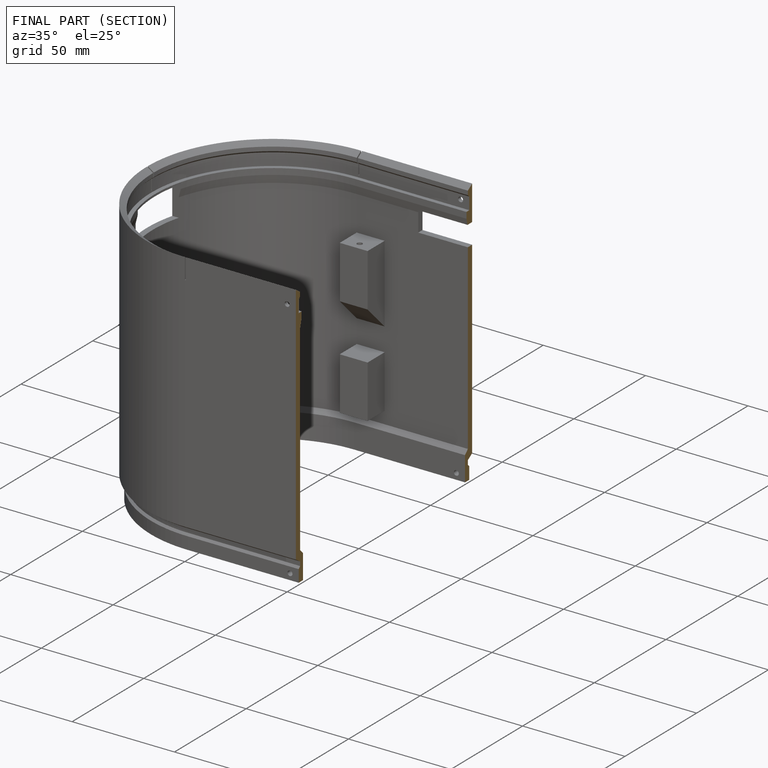
[diagram: finished part — half-section view (interior)]
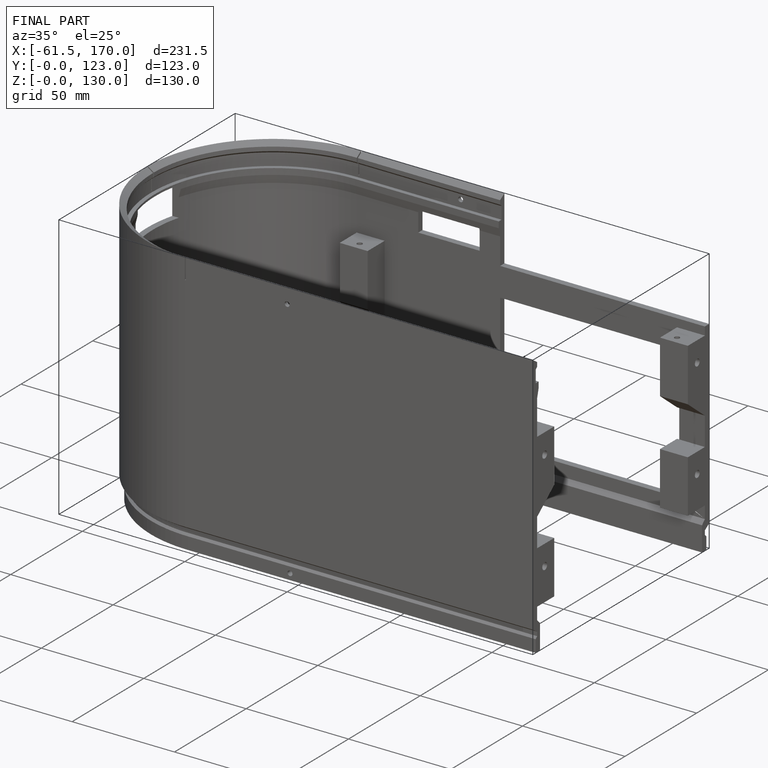
[diagram: finished part — iso view with bounding-box wireframe]
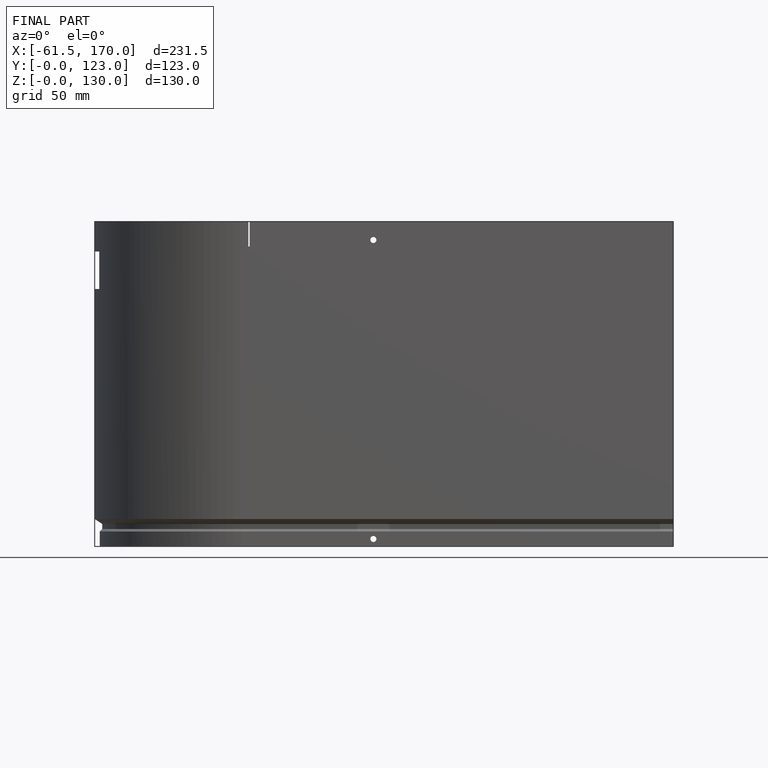
[diagram: finished part — front view with bounding-box wireframe]
